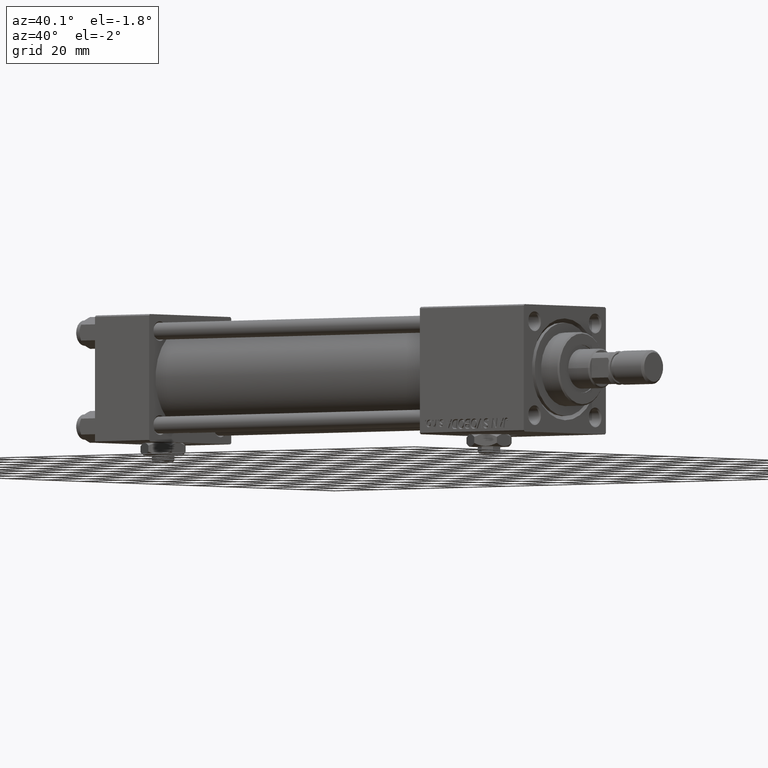
[diagram: clean part render]
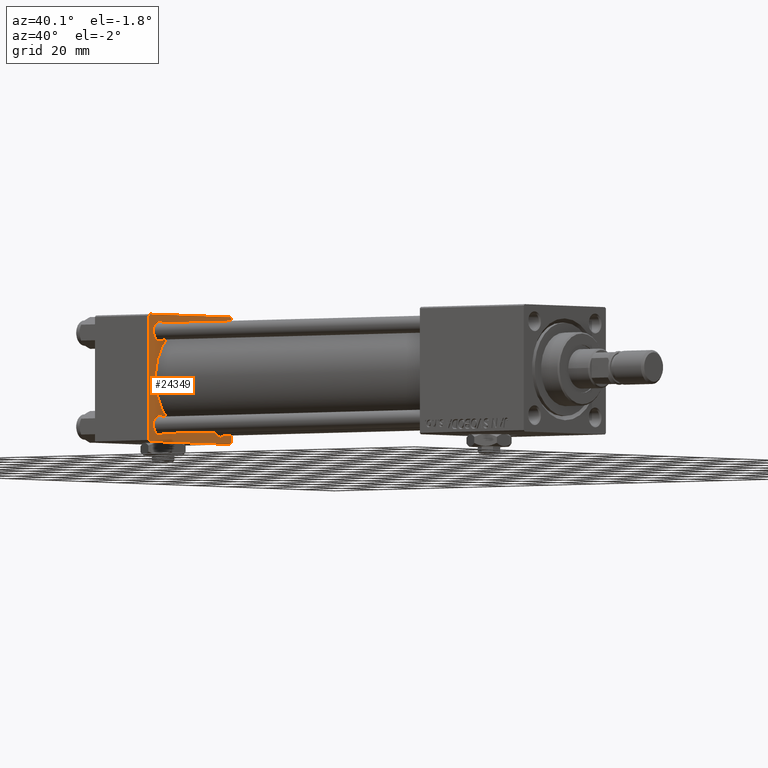
[diagram: same view with one face highlighted and labeled with its STEP entity id]
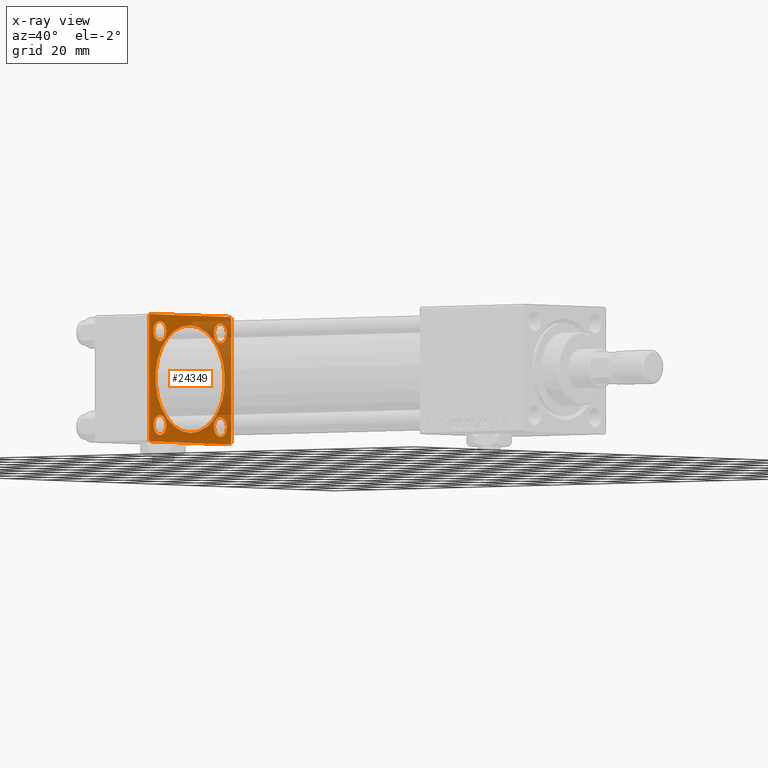
[diagram: x-ray of the same camera — body ghosted, the highlighted face saturated]
A machine part, auxiliary view. The second image highlights one B-rep face of the part: STEP entity #24349.
The next image is the same camera in x-ray: the body ghosted, the highlighted face saturated — about 34% of this face is hidden behind the body in this view.
In plain terms, the highlighted planar face has unit normal (-1, 0, 0).
Its self-contained STEP definition (entity closure, byte-faithful):
#414 = EDGE_CURVE ( 'NONE', #23828, #14935, #50021, .T. ) ;
#457 = DIRECTION ( 'NONE',  ( 0.000000000000000000, -1.000000000000000000, -7.709882115452476934E-17 ) ) ;
#912 = CARTESIAN_POINT ( 'NONE',  ( 25.00000000000000000, 16.59999999999999787, -16.60000000000000497 ) ) ;
#1379 = CIRCLE ( 'NONE', #31171, 3.500000000000003109 ) ;
#1538 = AXIS2_PLACEMENT_3D ( 'NONE', #912, #17681, #29409 ) ;
#1982 = LINE ( 'NONE', #30224, #50422 ) ;
#2111 = CARTESIAN_POINT ( 'NONE',  ( 25.00000000000000000, 21.99999999999999289, 22.50000000000000355 ) ) ;
#2256 = AXIS2_PLACEMENT_3D ( 'NONE', #3547, #48278, #11013 ) ;
#2359 = CARTESIAN_POINT ( 'NONE',  ( 25.00000000000000000, -16.59999999999999076, -16.60000000000000853 ) ) ;
#2422 = DIRECTION ( 'NONE',  ( 0.000000000000000000, 0.000000000000000000, 1.000000000000000000 ) ) ;
#2650 = VERTEX_POINT ( 'NONE', #8740 ) ;
#2849 = CARTESIAN_POINT ( 'NONE',  ( 24.99999999999999289, -2.752562955852396712E-16, -19.00000000000000000 ) ) ;
#2968 = ORIENTED_EDGE ( 'NONE', *, *, #414, .T. ) ;
#3434 = CARTESIAN_POINT ( 'NONE',  ( 25.00000000000000000, 22.50000000000000000, -21.99999999999996803 ) ) ;
#3514 = CARTESIAN_POINT ( 'NONE',  ( 25.00000000000000000, 16.59999999999999787, 16.60000000000000497 ) ) ;
#3547 = CARTESIAN_POINT ( 'NONE',  ( 24.99999999999999289, -2.602085213965210642E-15, 0.000000000000000000 ) ) ;
#3706 = DIRECTION ( 'NONE',  ( -1.000000000000000000, 0.000000000000000000, -0.000000000000000000 ) ) ;
#3768 = ORIENTED_EDGE ( 'NONE', *, *, #42478, .T. ) ;
#3779 = VERTEX_POINT ( 'NONE', #43481 ) ;
#4061 = AXIS2_PLACEMENT_3D ( 'NONE', #31104, #47605, #50353 ) ;
#4680 = ORIENTED_EDGE ( 'NONE', *, *, #13748, .F. ) ;
#5191 = LINE ( 'NONE', #41674, #40938 ) ;
#5409 = CIRCLE ( 'NONE', #47915, 3.500000000000003109 ) ;
#6157 = CARTESIAN_POINT ( 'NONE',  ( 24.99999999999999289, -2.602085213965210642E-15, 0.000000000000000000 ) ) ;
#6587 = VERTEX_POINT ( 'NONE', #20174 ) ;
#6648 = EDGE_CURVE ( 'NONE', #37351, #15134, #33712, .T. ) ;
#7526 = CARTESIAN_POINT ( 'NONE',  ( 25.00000000000000000, 22.50000000000000000, -22.49999999999999645 ) ) ;
#7898 = LINE ( 'NONE', #7526, #40546 ) ;
#8643 = ORIENTED_EDGE ( 'NONE', *, *, #52224, .T. ) ;
#8740 = CARTESIAN_POINT ( 'NONE',  ( 24.99999999999999289, -2.602085213965210642E-15, 19.00000000000000000 ) ) ;
#8955 = ORIENTED_EDGE ( 'NONE', *, *, #49719, .T. ) ;
#9337 = VERTEX_POINT ( 'NONE', #47157 ) ;
#9349 = AXIS2_PLACEMENT_3D ( 'NONE', #36740, #3706, #28740 ) ;
#9356 = ORIENTED_EDGE ( 'NONE', *, *, #18097, .F. ) ;
#9985 = DIRECTION ( 'NONE',  ( -0.000000000000000000, 0.7071067811865426878, 0.7071067811865524577 ) ) ;
#10370 = VECTOR ( 'NONE', #51171, 1000.000000000000000 ) ;
#10529 = EDGE_LOOP ( 'NONE', ( #51390, #8955 ) ) ;
#10610 = CARTESIAN_POINT ( 'NONE',  ( 25.00000000000000000, 22.50000000000000000, 22.50000000000000355 ) ) ;
#10897 = DIRECTION ( 'NONE',  ( 0.000000000000000000, 0.000000000000000000, 1.000000000000000000 ) ) ;
#11013 = DIRECTION ( 'NONE',  ( 0.000000000000000000, 0.000000000000000000, 1.000000000000000000 ) ) ;
#11114 = EDGE_LOOP ( 'NONE', ( #13812, #37967, #35887, #18052, #36142, #8643, #11997, #38657 ) ) ;
#11854 = EDGE_CURVE ( 'NONE', #34525, #6587, #36691, .T. ) ;
#11902 = CARTESIAN_POINT ( 'NONE',  ( 25.00000000000000000, -22.50000000000000000, 22.00000000000000000 ) ) ;
#11997 = ORIENTED_EDGE ( 'NONE', *, *, #32817, .T. ) ;
#12267 = DIRECTION ( 'NONE',  ( 0.000000000000000000, 0.000000000000000000, 1.000000000000000000 ) ) ;
#12405 = DIRECTION ( 'NONE',  ( 0.000000000000000000, 0.7071067811865426878, -0.7071067811865524577 ) ) ;
#12763 = PLANE ( 'NONE',  #9349 ) ;
#13644 = CARTESIAN_POINT ( 'NONE',  ( 25.00000000000000000, 16.59999999999999787, -16.60000000000000497 ) ) ;
#13701 = AXIS2_PLACEMENT_3D ( 'NONE', #2359, #14625, #10897 ) ;
#13748 = EDGE_CURVE ( 'NONE', #2650, #43372, #20137, .T. ) ;
#13812 = ORIENTED_EDGE ( 'NONE', *, *, #18091, .F. ) ;
#14625 = DIRECTION ( 'NONE',  ( -1.000000000000000000, 0.000000000000000000, -0.000000000000000000 ) ) ;
#14672 = CARTESIAN_POINT ( 'NONE',  ( 25.00000000000000000, 16.59999999999999787, 13.10000000000000142 ) ) ;
#14935 = VERTEX_POINT ( 'NONE', #51113 ) ;
#15134 = VERTEX_POINT ( 'NONE', #3434 ) ;
#15959 = CIRCLE ( 'NONE', #4061, 3.499999999999978684 ) ;
#15967 = EDGE_CURVE ( 'NONE', #35088, #19325, #46430, .T. ) ;
#16811 = AXIS2_PLACEMENT_3D ( 'NONE', #43615, #47353, #26608 ) ;
#16977 = CARTESIAN_POINT ( 'NONE',  ( 25.00000000000000000, -16.59999999999999076, -16.60000000000000853 ) ) ;
#17041 = CIRCLE ( 'NONE', #30635, 3.499999999999975131 ) ;
#17681 = DIRECTION ( 'NONE',  ( -1.000000000000000000, 0.000000000000000000, -0.000000000000000000 ) ) ;
#17723 = CARTESIAN_POINT ( 'NONE',  ( 25.00000000000000000, 21.99999999999999289, -22.49999999999999645 ) ) ;
#17901 = VECTOR ( 'NONE', #45947, 1000.000000000000000 ) ;
#17928 = CARTESIAN_POINT ( 'NONE',  ( 25.00000000000000000, 16.59999999999999787, 20.10000000000000853 ) ) ;
#18052 = ORIENTED_EDGE ( 'NONE', *, *, #26944, .T. ) ;
#18091 = EDGE_CURVE ( 'NONE', #43513, #3779, #7898, .T. ) ;
#18097 = EDGE_CURVE ( 'NONE', #43372, #2650, #24421, .T. ) ;
#19325 = VERTEX_POINT ( 'NONE', #14672 ) ;
#19622 = EDGE_CURVE ( 'NONE', #52604, #9337, #39746, .T. ) ;
#19776 = VERTEX_POINT ( 'NONE', #37150 ) ;
#20137 = CIRCLE ( 'NONE', #21018, 19.00000000000000000 ) ;
#20174 = CARTESIAN_POINT ( 'NONE',  ( 25.00000000000000000, -16.59999999999999076, -13.10000000000003162 ) ) ;
#20193 = DIRECTION ( 'NONE',  ( -1.000000000000000000, 0.000000000000000000, -0.000000000000000000 ) ) ;
#20318 = DIRECTION ( 'NONE',  ( 0.000000000000000000, 0.000000000000000000, 1.000000000000000000 ) ) ;
#20780 = FACE_BOUND ( 'NONE', #37522, .T. ) ;
#20779 = VECTOR ( 'NONE', #457, 1000.000000000000000 ) ;
#21018 = AXIS2_PLACEMENT_3D ( 'NONE', #6157, #22431, #2422 ) ;
#21224 = CARTESIAN_POINT ( 'NONE',  ( 25.00000000000000000, 22.50000000000000000, 22.50000000000000355 ) ) ;
#22056 = LINE ( 'NONE', #46017, #37329 ) ;
#22431 = DIRECTION ( 'NONE',  ( 1.000000000000000000, -0.000000000000000000, 0.000000000000000000 ) ) ;
#23227 = LINE ( 'NONE', #27480, #10370 ) ;
#23430 = FACE_BOUND ( 'NONE', #24110, .T. ) ;
#23828 = VERTEX_POINT ( 'NONE', #51803 ) ;
#24110 = EDGE_LOOP ( 'NONE', ( #30763, #43333 ) ) ;
#24349 = ADVANCED_FACE ( 'NONE', ( #23430, #28482, #52414, #20780, #40185, #24767 ), #12763, .F. ) ;
#24421 = CIRCLE ( 'NONE', #2256, 19.00000000000000000 ) ;
#24767 = FACE_OUTER_BOUND ( 'NONE', #11114, .T. ) ;
#25558 = EDGE_CURVE ( 'NONE', #6587, #34525, #17041, .T. ) ;
#26107 = DIRECTION ( 'NONE',  ( 0.000000000000000000, -0.7071067811865474617, 0.7071067811865474617 ) ) ;
#26167 = DIRECTION ( 'NONE',  ( 0.000000000000000000, 0.000000000000000000, 1.000000000000000000 ) ) ;
#26608 = DIRECTION ( 'NONE',  ( 0.000000000000000000, 0.000000000000000000, 1.000000000000000000 ) ) ;
#26944 = EDGE_CURVE ( 'NONE', #37351, #37372, #46329, .T. ) ;
#27480 = CARTESIAN_POINT ( 'NONE',  ( 25.00000000000000000, -22.50000000000000000, 22.50000000000000000 ) ) ;
#28258 = CARTESIAN_POINT ( 'NONE',  ( 25.00000000000000000, 16.59999999999999787, 16.60000000000000497 ) ) ;
#28407 = EDGE_LOOP ( 'NONE', ( #4680, #9356 ) ) ;
#28482 = FACE_BOUND ( 'NONE', #52214, .T. ) ;
#28691 = DIRECTION ( 'NONE',  ( 0.000000000000000000, 0.000000000000000000, 1.000000000000000000 ) ) ;
#28740 = DIRECTION ( 'NONE',  ( -0.000000000000000000, 0.000000000000000000, 1.000000000000000000 ) ) ;
#29409 = DIRECTION ( 'NONE',  ( 0.000000000000000000, 0.000000000000000000, 1.000000000000000000 ) ) ;
#30224 = CARTESIAN_POINT ( 'NONE',  ( 25.00000000000000000, 22.50000000000000000, -21.99999999999998224 ) ) ;
#30635 = AXIS2_PLACEMENT_3D ( 'NONE', #16977, #20193, #28691 ) ;
#30763 = ORIENTED_EDGE ( 'NONE', *, *, #11854, .T. ) ;
#30855 = LINE ( 'NONE', #10610, #20779 ) ;
#31085 = CARTESIAN_POINT ( 'NONE',  ( 25.00000000000000000, -16.59999999999999076, -20.09999999999998366 ) ) ;
#31104 = CARTESIAN_POINT ( 'NONE',  ( 25.00000000000000000, -16.59999999999999076, 16.60000000000000853 ) ) ;
#31171 = AXIS2_PLACEMENT_3D ( 'NONE', #13644, #38911, #26167 ) ;
#31434 = CARTESIAN_POINT ( 'NONE',  ( 25.00000000000000000, 21.99999999999999289, 22.50000000000000355 ) ) ;
#31569 = CARTESIAN_POINT ( 'NONE',  ( 25.00000000000000000, -16.59999999999999076, 13.10000000000002807 ) ) ;
#32280 = DIRECTION ( 'NONE',  ( -1.000000000000000000, 0.000000000000000000, -0.000000000000000000 ) ) ;
#32367 = EDGE_CURVE ( 'NONE', #50702, #3779, #5191, .T. ) ;
#32817 = EDGE_CURVE ( 'NONE', #43317, #50702, #23227, .T. ) ;
#33712 = LINE ( 'NONE', #21224, #17901 ) ;
#34525 = VERTEX_POINT ( 'NONE', #31085 ) ;
#35088 = VERTEX_POINT ( 'NONE', #17928 ) ;
#35887 = ORIENTED_EDGE ( 'NONE', *, *, #6648, .F. ) ;
#36142 = ORIENTED_EDGE ( 'NONE', *, *, #38778, .T. ) ;
#36665 = EDGE_CURVE ( 'NONE', #43513, #15134, #1982, .T. ) ;
#36691 = CIRCLE ( 'NONE', #13701, 3.499999999999975131 ) ;
#36740 = CARTESIAN_POINT ( 'NONE',  ( 25.00000000000000000, 0.000000000000000000, 0.000000000000000000 ) ) ;
#37013 = CARTESIAN_POINT ( 'NONE',  ( 25.00000000000000000, -22.50000000000000000, -21.99999999999997158 ) ) ;
#37138 = EDGE_CURVE ( 'NONE', #19325, #35088, #5409, .T. ) ;
#37150 = CARTESIAN_POINT ( 'NONE',  ( 25.00000000000000000, -21.99999999999997868, 22.50000000000000000 ) ) ;
#37329 = VECTOR ( 'NONE', #43053, 999.9999999999998863 ) ;
#37351 = VERTEX_POINT ( 'NONE', #52420 ) ;
#37372 = VERTEX_POINT ( 'NONE', #31434 ) ;
#37522 = EDGE_LOOP ( 'NONE', ( #52538, #42057 ) ) ;
#37967 = ORIENTED_EDGE ( 'NONE', *, *, #36665, .T. ) ;
#38657 = ORIENTED_EDGE ( 'NONE', *, *, #32367, .T. ) ;
#38778 = EDGE_CURVE ( 'NONE', #37372, #19776, #30855, .T. ) ;
#38911 = DIRECTION ( 'NONE',  ( -1.000000000000000000, 0.000000000000000000, -0.000000000000000000 ) ) ;
#39746 = CIRCLE ( 'NONE', #16811, 3.499999999999978684 ) ;
#40185 = FACE_BOUND ( 'NONE', #28407, .T. ) ;
#40284 = DIRECTION ( 'NONE',  ( 0.000000000000000000, -1.000000000000000000, -2.312964634635742957E-16 ) ) ;
#40546 = VECTOR ( 'NONE', #40284, 1000.000000000000000 ) ;
#40938 = VECTOR ( 'NONE', #12405, 1000.000000000000000 ) ;
#41014 = DIRECTION ( 'NONE',  ( -1.000000000000000000, 0.000000000000000000, -0.000000000000000000 ) ) ;
#41674 = CARTESIAN_POINT ( 'NONE',  ( 25.00000000000000000, -21.99999999999998579, -22.50000000000000711 ) ) ;
#42057 = ORIENTED_EDGE ( 'NONE', *, *, #15967, .T. ) ;
#42292 = AXIS2_PLACEMENT_3D ( 'NONE', #28258, #41014, #12267 ) ;
#42478 = EDGE_CURVE ( 'NONE', #14935, #23828, #1379, .T. ) ;
#42563 = VECTOR ( 'NONE', #26107, 1000.000000000000114 ) ;
#43053 = DIRECTION ( 'NONE',  ( -0.000000000000000000, -0.7071067811865525687, -0.7071067811865425767 ) ) ;
#43317 = VERTEX_POINT ( 'NONE', #11902 ) ;
#43333 = ORIENTED_EDGE ( 'NONE', *, *, #25558, .T. ) ;
#43372 = VERTEX_POINT ( 'NONE', #2849 ) ;
#43481 = CARTESIAN_POINT ( 'NONE',  ( 25.00000000000000000, -21.99999999999997158, -22.50000000000000711 ) ) ;
#43513 = VERTEX_POINT ( 'NONE', #17723 ) ;
#43615 = CARTESIAN_POINT ( 'NONE',  ( 25.00000000000000000, -16.59999999999999076, 16.60000000000000853 ) ) ;
#45947 = DIRECTION ( 'NONE',  ( 0.000000000000000000, 0.000000000000000000, -1.000000000000000000 ) ) ;
#46017 = CARTESIAN_POINT ( 'NONE',  ( 25.00000000000000000, -22.50000000000000000, 22.00000000000000000 ) ) ;
#46329 = LINE ( 'NONE', #2111, #42563 ) ;
#46430 = CIRCLE ( 'NONE', #42292, 3.500000000000003109 ) ;
#47157 = CARTESIAN_POINT ( 'NONE',  ( 25.00000000000000000, -16.59999999999999076, 20.09999999999998721 ) ) ;
#47353 = DIRECTION ( 'NONE',  ( -1.000000000000000000, 0.000000000000000000, -0.000000000000000000 ) ) ;
#47605 = DIRECTION ( 'NONE',  ( -1.000000000000000000, 0.000000000000000000, -0.000000000000000000 ) ) ;
#47915 = AXIS2_PLACEMENT_3D ( 'NONE', #3514, #32280, #20318 ) ;
#48278 = DIRECTION ( 'NONE',  ( 1.000000000000000000, -0.000000000000000000, 0.000000000000000000 ) ) ;
#49719 = EDGE_CURVE ( 'NONE', #9337, #52604, #15959, .T. ) ;
#50021 = CIRCLE ( 'NONE', #1538, 3.500000000000003109 ) ;
#50353 = DIRECTION ( 'NONE',  ( 0.000000000000000000, 0.000000000000000000, 1.000000000000000000 ) ) ;
#50422 = VECTOR ( 'NONE', #9985, 1000.000000000000000 ) ;
#50702 = VERTEX_POINT ( 'NONE', #37013 ) ;
#51113 = CARTESIAN_POINT ( 'NONE',  ( 25.00000000000000000, 16.59999999999999787, -20.10000000000000853 ) ) ;
#51171 = DIRECTION ( 'NONE',  ( 0.000000000000000000, 0.000000000000000000, -1.000000000000000000 ) ) ;
#51390 = ORIENTED_EDGE ( 'NONE', *, *, #19622, .T. ) ;
#51803 = CARTESIAN_POINT ( 'NONE',  ( 25.00000000000000000, 16.59999999999999787, -13.10000000000000142 ) ) ;
#52214 = EDGE_LOOP ( 'NONE', ( #3768, #2968 ) ) ;
#52224 = EDGE_CURVE ( 'NONE', #19776, #43317, #22056, .T. ) ;
#52414 = FACE_BOUND ( 'NONE', #10529, .T. ) ;
#52420 = CARTESIAN_POINT ( 'NONE',  ( 25.00000000000000000, 22.50000000000000000, 21.99999999999999645 ) ) ;
#52538 = ORIENTED_EDGE ( 'NONE', *, *, #37138, .T. ) ;
#52604 = VERTEX_POINT ( 'NONE', #31569 ) ;